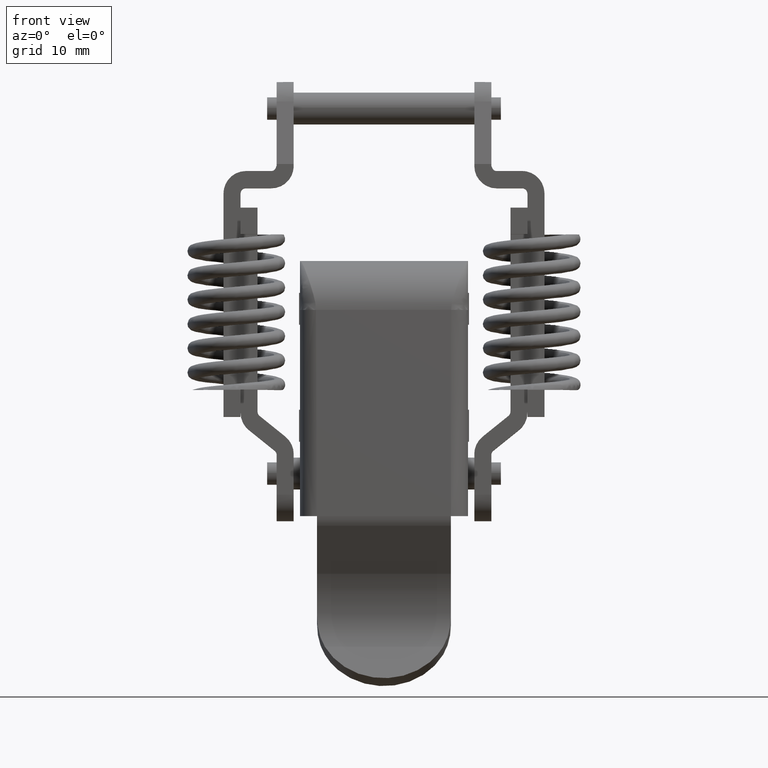
[diagram: clean part render]
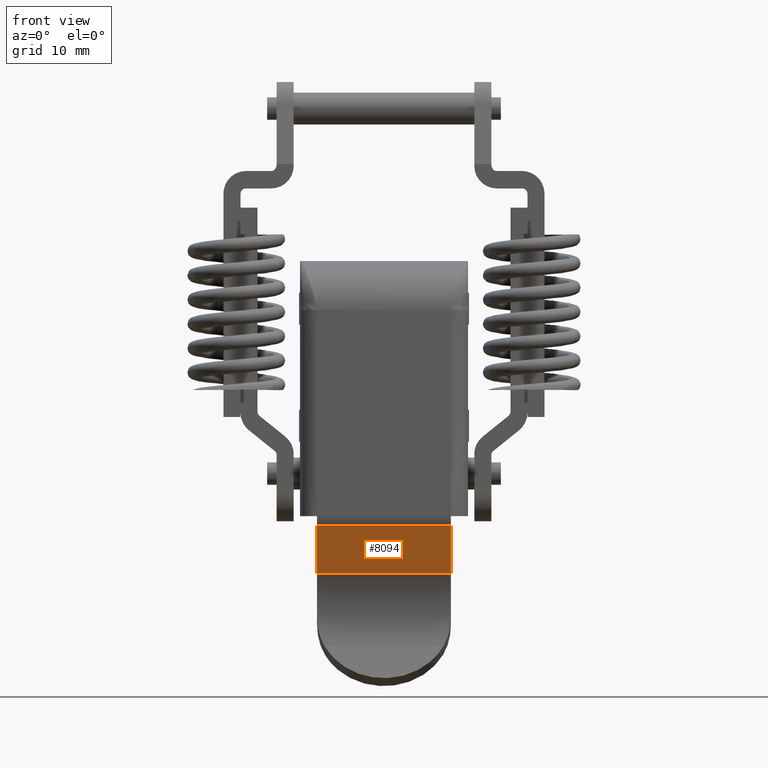
[diagram: same view with one face highlighted and labeled with its STEP entity id]
A machine part, front view. The second image highlights one B-rep face of the part: STEP entity #8094.
In plain terms, the highlighted face is a freeform B-spline surface patch.
Its self-contained STEP definition (entity closure, byte-faithful):
#7681=CARTESIAN_POINT('',(-8.448576733048821,6.300000000000000,-39.274331705415747));
#7682=VERTEX_POINT('',#7681);
#7698=CARTESIAN_POINT('',(-8.448576733048821,-6.300000000000000,-39.274331705415747));
#7699=VERTEX_POINT('',#7698);
#7700=CARTESIAN_POINT('',(-8.448576733048821,-6.300000000000000,-39.274331705415747));
#7701=CARTESIAN_POINT('',(-8.448576733048821,6.300000000000000,-39.274331705415747));
#7702=QUASI_UNIFORM_CURVE('',1,(#7700,#7701),.UNSPECIFIED.,.F.,.U.);
#7703=EDGE_CURVE('',#7699,#7682,#7702,.T.);
#7878=CARTESIAN_POINT('',(-5.776528829735029,-6.300000000000000,-43.783994916380202));
#7879=VERTEX_POINT('',#7878);
#7880=CARTESIAN_POINT('',(-8.448576733048821,-6.300000000000000,-39.274331705415747));
#7881=CARTESIAN_POINT('',(-5.776528829735029,-6.300000000000000,-43.783994916380202));
#7882=QUASI_UNIFORM_CURVE('',1,(#7880,#7881),.UNSPECIFIED.,.F.,.U.);
#7883=EDGE_CURVE('',#7699,#7879,#7882,.T.);
#7933=CARTESIAN_POINT('',(-5.776528829735029,6.300000000000000,-43.783994916380202));
#7934=VERTEX_POINT('',#7933);
#7935=CARTESIAN_POINT('',(-8.448576733048821,6.300000000000000,-39.274331705415747));
#7936=CARTESIAN_POINT('',(-5.776528829735029,6.300000000000000,-43.783994916380202));
#7937=QUASI_UNIFORM_CURVE('',1,(#7935,#7936),.UNSPECIFIED.,.F.,.U.);
#7938=EDGE_CURVE('',#7682,#7934,#7937,.T.);
#8075=CARTESIAN_POINT('',(-5.776528829735029,6.300000000000000,-43.783994916380202));
#8076=CARTESIAN_POINT('',(-5.776528829735029,-6.300000000000000,-43.783994916380202));
#8077=QUASI_UNIFORM_CURVE('',1,(#8075,#8076),.UNSPECIFIED.,.F.,.U.);
#8078=EDGE_CURVE('',#7934,#7879,#8077,.T.);
#8083=CARTESIAN_POINT('',(-5.643059226376260,-6.929370212138326,-44.009253961812263));
#8084=CARTESIAN_POINT('',(-8.582046431967537,-6.929370212138326,-39.049072498705591));
#8085=CARTESIAN_POINT('',(-5.643059226376260,6.929370324791104,-44.009253961812263));
#8086=CARTESIAN_POINT('',(-8.582046431967536,6.929370324791104,-39.049072498705591));
#8087=B_SPLINE_SURFACE_WITH_KNOTS('',1,1,((#8083,#8085),(#8084,#8086)),.UNSPECIFIED.,.F.,.F.,.U.,(2,2),(2,2),(0.0,5.765504829724477),(0.0,13.858740536929430),.UNSPECIFIED.);
#8088=ORIENTED_EDGE('',*,*,#7883,.F.);
#8089=ORIENTED_EDGE('',*,*,#7703,.T.);
#8090=ORIENTED_EDGE('',*,*,#7938,.T.);
#8091=ORIENTED_EDGE('',*,*,#8078,.T.);
#8092=EDGE_LOOP('',(#8088,#8089,#8090,#8091));
#8093=FACE_OUTER_BOUND('',#8092,.T.);
#8094=ADVANCED_FACE('',(#8093),#8087,.T.);